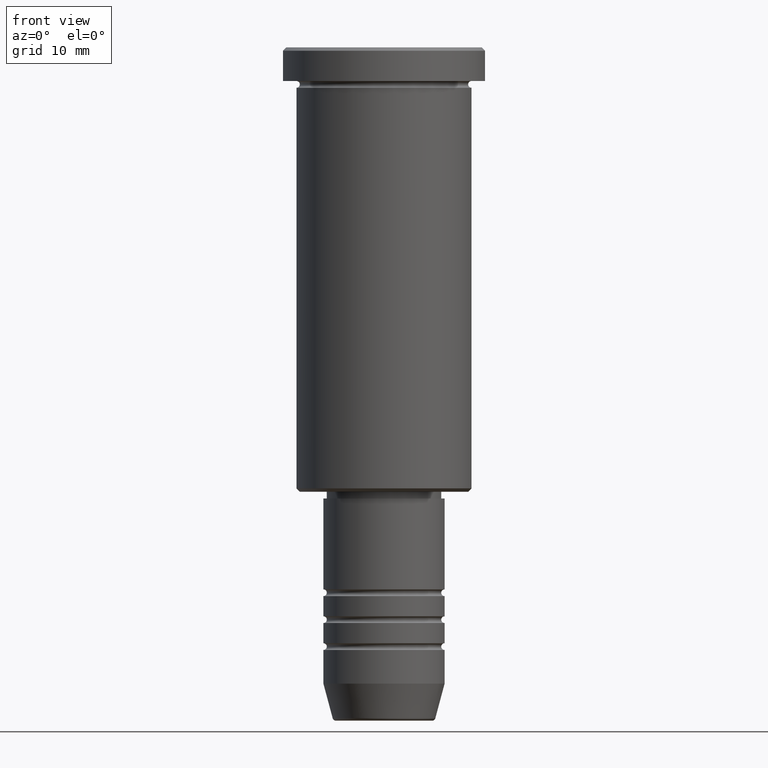
[diagram: clean part render]
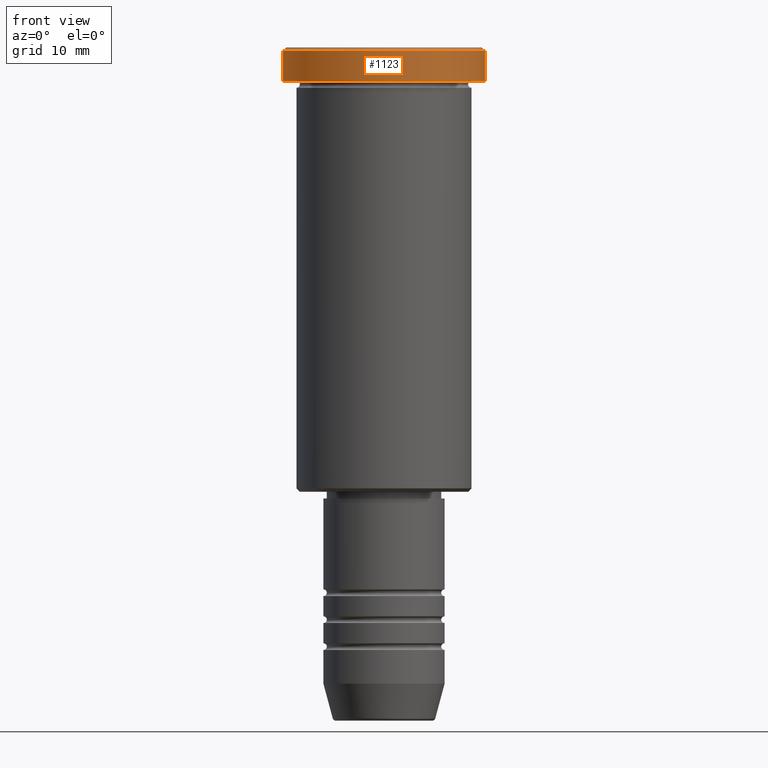
[diagram: same view with one face highlighted and labeled with its STEP entity id]
A machine part, front view. The second image highlights one B-rep face of the part: STEP entity #1123.
In plain terms, the highlighted cylindrical surface (partial cylindrical patch) has radius 15 mm, axis along (-0, -0, 1).
Its self-contained STEP definition (entity closure, byte-faithful):
#5 = AXIS2_PLACEMENT_3D ( 'NONE', #713, #627, #498 ) ;
#27 = LINE ( 'NONE', #543, #185 ) ;
#33 = CIRCLE ( 'NONE', #132, 15.00000000000000000 ) ;
#41 = CARTESIAN_POINT ( 'NONE',  ( 15.00000000000000000, 0.000000000000000000, -4.999999999999999112 ) ) ;
#70 = VERTEX_POINT ( 'NONE', #106 ) ;
#71 = DIRECTION ( 'NONE',  ( -0.000000000000000000, -0.000000000000000000, 1.000000000000000000 ) ) ;
#92 = EDGE_CURVE ( 'NONE', #70, #281, #1118, .T. ) ;
#106 = CARTESIAN_POINT ( 'NONE',  ( 15.00000000000000000, 0.000000000000000000, -0.4999999999999831246 ) ) ;
#132 = AXIS2_PLACEMENT_3D ( 'NONE', #516, #71, #1155 ) ;
#140 = DIRECTION ( 'NONE',  ( 1.000000000000000000, 0.000000000000000000, 0.000000000000000000 ) ) ;
#155 = DIRECTION ( 'NONE',  ( -0.000000000000000000, -0.000000000000000000, 1.000000000000000000 ) ) ;
#185 = VECTOR ( 'NONE', #826, 1000.000000000000000 ) ;
#234 = EDGE_CURVE ( 'NONE', #855, #281, #853, .T. ) ;
#276 = VECTOR ( 'NONE', #455, 1000.000000000000000 ) ;
#279 = AXIS2_PLACEMENT_3D ( 'NONE', #504, #155, #140 ) ;
#281 = VERTEX_POINT ( 'NONE', #443 ) ;
#312 = ORIENTED_EDGE ( 'NONE', *, *, #1017, .T. ) ;
#378 = EDGE_LOOP ( 'NONE', ( #894, #625, #312, #801 ) ) ;
#443 = CARTESIAN_POINT ( 'NONE',  ( -15.00000000000000000, 1.836970198721029589E-15, -0.4999999999999831246 ) ) ;
#455 = DIRECTION ( 'NONE',  ( -0.000000000000000000, -0.000000000000000000, 1.000000000000000000 ) ) ;
#498 = DIRECTION ( 'NONE',  ( 1.000000000000000000, 0.000000000000000000, 0.000000000000000000 ) ) ;
#504 = CARTESIAN_POINT ( 'NONE',  ( 0.000000000000000000, 0.000000000000000000, 0.000000000000000000 ) ) ;
#516 = CARTESIAN_POINT ( 'NONE',  ( 0.000000000000000000, 0.000000000000000000, -4.999999999999999112 ) ) ;
#543 = CARTESIAN_POINT ( 'NONE',  ( 15.00000000000000000, 0.000000000000000000, 0.000000000000000000 ) ) ;
#625 = ORIENTED_EDGE ( 'NONE', *, *, #899, .T. ) ;
#627 = DIRECTION ( 'NONE',  ( 0.000000000000000000, 0.000000000000000000, -1.000000000000000000 ) ) ;
#636 = VERTEX_POINT ( 'NONE', #41 ) ;
#676 = CYLINDRICAL_SURFACE ( 'NONE', #279, 15.00000000000000000 ) ;
#713 = CARTESIAN_POINT ( 'NONE',  ( 0.000000000000000000, 0.000000000000000000, -0.4999999999999831246 ) ) ;
#801 = ORIENTED_EDGE ( 'NONE', *, *, #92, .T. ) ;
#817 = CARTESIAN_POINT ( 'NONE',  ( -15.00000000000000000, 1.836970198721029589E-15, -4.999999999999999112 ) ) ;
#824 = CARTESIAN_POINT ( 'NONE',  ( -15.00000000000000000, 1.836970198721029589E-15, 0.000000000000000000 ) ) ;
#826 = DIRECTION ( 'NONE',  ( -0.000000000000000000, -0.000000000000000000, 1.000000000000000000 ) ) ;
#853 = LINE ( 'NONE', #824, #276 ) ;
#855 = VERTEX_POINT ( 'NONE', #817 ) ;
#894 = ORIENTED_EDGE ( 'NONE', *, *, #234, .F. ) ;
#899 = EDGE_CURVE ( 'NONE', #855, #636, #33, .T. ) ;
#959 = FACE_OUTER_BOUND ( 'NONE', #378, .T. ) ;
#1017 = EDGE_CURVE ( 'NONE', #636, #70, #27, .T. ) ;
#1118 = CIRCLE ( 'NONE', #5, 15.00000000000000000 ) ;
#1123 = ADVANCED_FACE ( 'NONE', ( #959 ), #676, .T. ) ;
#1155 = DIRECTION ( 'NONE',  ( 1.000000000000000000, 0.000000000000000000, 0.000000000000000000 ) ) ;